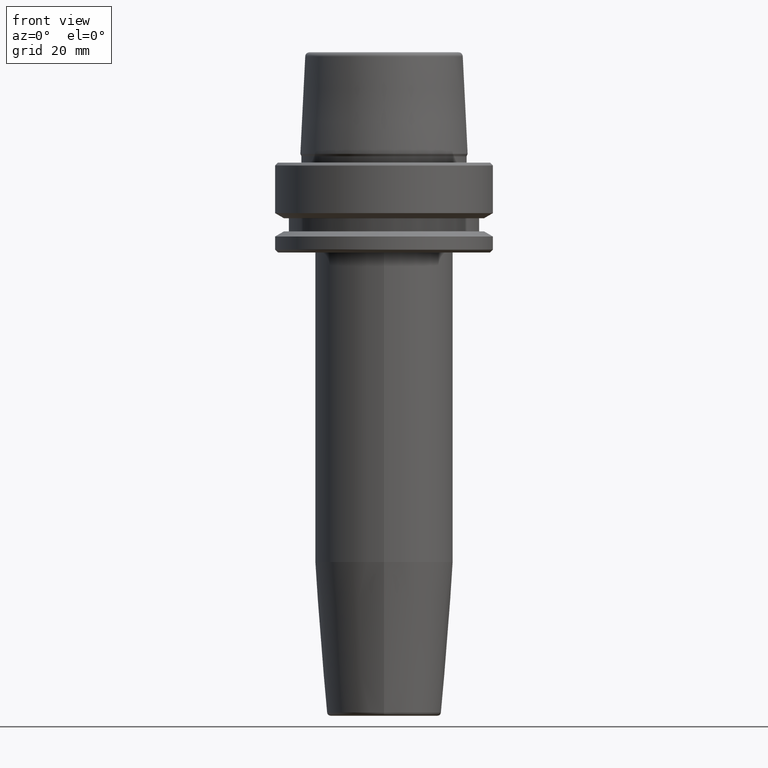
[diagram: clean part render]
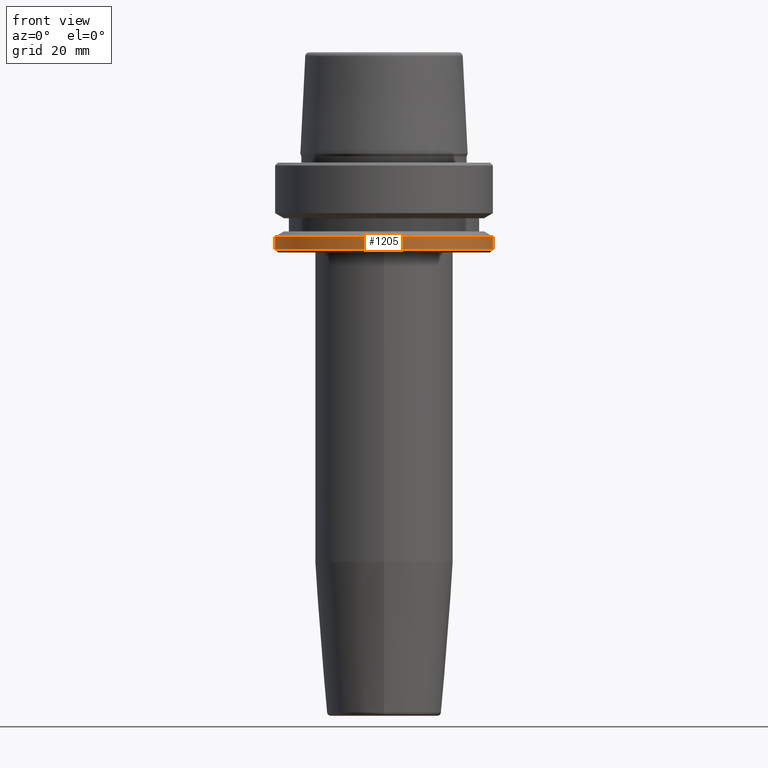
[diagram: same view with one face highlighted and labeled with its STEP entity id]
A machine part, front view. The second image highlights one B-rep face of the part: STEP entity #1205.
In plain terms, the highlighted cylindrical surface (partial cylindrical patch) has radius 31.5 mm, axis along (-0, -0, 1).
Its self-contained STEP definition (entity closure, byte-faithful):
#62 = LINE ( 'NONE', #177, #988 ) ;
#65 = ORIENTED_EDGE ( 'NONE', *, *, #330, .F. ) ;
#68 = CARTESIAN_POINT ( 'NONE',  ( 0.0000000000000000000, 0.0000000000000000000, -21.37749907475931700 ) ) ;
#76 = CARTESIAN_POINT ( 'NONE',  ( -31.50000000000000000, 3.857637417314162700E-015, -21.37749907475931700 ) ) ;
#167 = DIRECTION ( 'NONE',  ( -0.0000000000000000000, -0.0000000000000000000, 1.000000000000000000 ) ) ;
#177 = CARTESIAN_POINT ( 'NONE',  ( -31.50000000000000000, 3.857637417314162700E-015, 78.96908074195309300 ) ) ;
#206 = DIRECTION ( 'NONE',  ( -0.0000000000000000000, -0.0000000000000000000, 1.000000000000000000 ) ) ;
#277 = CARTESIAN_POINT ( 'NONE',  ( 0.0000000000000000000, 0.0000000000000000000, 78.96908074195309300 ) ) ;
#330 = EDGE_CURVE ( 'NONE', #970, #1129, #62, .T. ) ;
#379 = ORIENTED_EDGE ( 'NONE', *, *, #522, .F. ) ;
#382 = DIRECTION ( 'NONE',  ( 1.000000000000000000, 0.0000000000000000000, 0.0000000000000000000 ) ) ;
#385 = DIRECTION ( 'NONE',  ( -0.0000000000000000000, -0.0000000000000000000, 1.000000000000000000 ) ) ;
#410 = AXIS2_PLACEMENT_3D ( 'NONE', #792, #206, #899 ) ;
#412 = AXIS2_PLACEMENT_3D ( 'NONE', #68, #1168, #859 ) ;
#428 = CARTESIAN_POINT ( 'NONE',  ( 31.50000000000000000, 0.0000000000000000000, 78.96908074195309300 ) ) ;
#434 = ORIENTED_EDGE ( 'NONE', *, *, #784, .T. ) ;
#459 = AXIS2_PLACEMENT_3D ( 'NONE', #277, #385, #382 ) ;
#484 = CYLINDRICAL_SURFACE ( 'NONE', #459, 31.50000000000000000 ) ;
#522 = EDGE_CURVE ( 'NONE', #1129, #785, #884, .T. ) ;
#583 = ORIENTED_EDGE ( 'NONE', *, *, #919, .T. ) ;
#630 = VERTEX_POINT ( 'NONE', #993 ) ;
#668 = EDGE_LOOP ( 'NONE', ( #65, #434, #583, #379 ) ) ;
#784 = EDGE_CURVE ( 'NONE', #970, #630, #1151, .T. ) ;
#785 = VERTEX_POINT ( 'NONE', #795 ) ;
#792 = CARTESIAN_POINT ( 'NONE',  ( 0.0000000000000000000, 0.0000000000000000000, -25.03431457505077200 ) ) ;
#795 = CARTESIAN_POINT ( 'NONE',  ( 31.50000000000000000, 0.0000000000000000000, -21.37749907475931700 ) ) ;
#809 = FACE_OUTER_BOUND ( 'NONE', #668, .T. ) ;
#859 = DIRECTION ( 'NONE',  ( 1.000000000000000000, 0.0000000000000000000, 0.0000000000000000000 ) ) ;
#884 = CIRCLE ( 'NONE', #412, 31.50000000000000000 ) ;
#899 = DIRECTION ( 'NONE',  ( 1.000000000000000000, 0.0000000000000000000, 0.0000000000000000000 ) ) ;
#913 = VECTOR ( 'NONE', #1116, 1000.000000000000000 ) ;
#919 = EDGE_CURVE ( 'NONE', #630, #785, #944, .T. ) ;
#944 = LINE ( 'NONE', #428, #913 ) ;
#970 = VERTEX_POINT ( 'NONE', #1121 ) ;
#988 = VECTOR ( 'NONE', #167, 1000.000000000000000 ) ;
#993 = CARTESIAN_POINT ( 'NONE',  ( 31.50000000000000000, 0.0000000000000000000, -25.03431457505077200 ) ) ;
#1116 = DIRECTION ( 'NONE',  ( -0.0000000000000000000, -0.0000000000000000000, 1.000000000000000000 ) ) ;
#1121 = CARTESIAN_POINT ( 'NONE',  ( -31.50000000000000000, 3.857637417314161900E-015, -25.03431457505077200 ) ) ;
#1129 = VERTEX_POINT ( 'NONE', #76 ) ;
#1151 = CIRCLE ( 'NONE', #410, 31.50000000000000000 ) ;
#1168 = DIRECTION ( 'NONE',  ( -0.0000000000000000000, -0.0000000000000000000, 1.000000000000000000 ) ) ;
#1205 = ADVANCED_FACE ( 'NONE', ( #809 ), #484, .T. ) ;